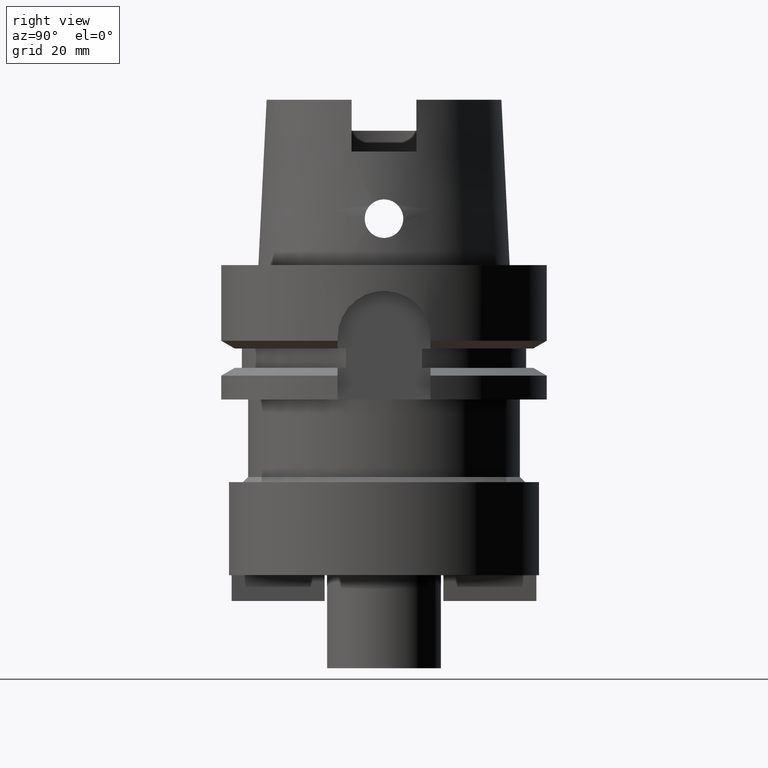
[diagram: clean part render]
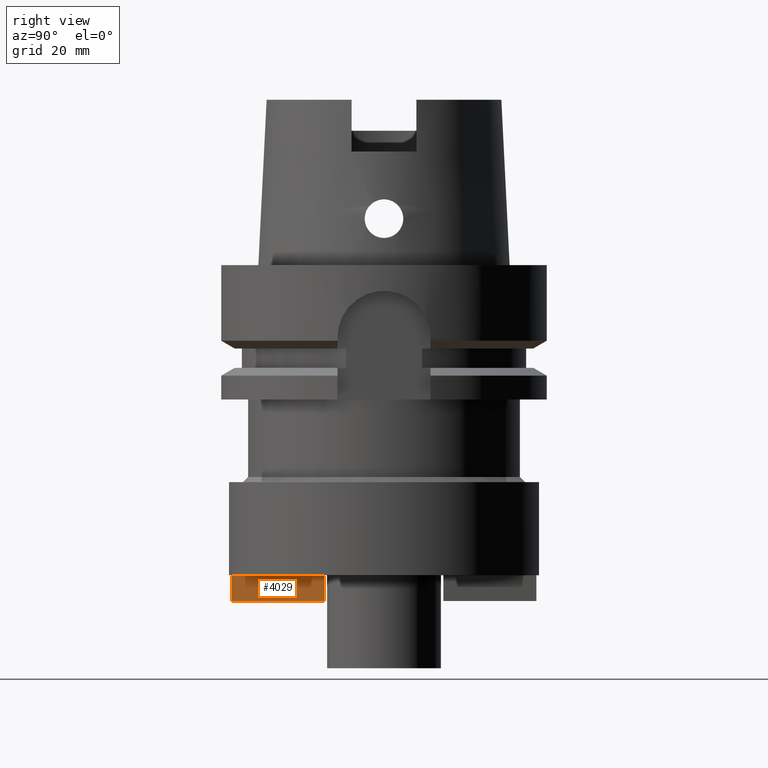
[diagram: same view with one face highlighted and labeled with its STEP entity id]
A machine part, right view. The second image highlights one B-rep face of the part: STEP entity #4029.
In plain terms, the highlighted planar face has unit normal (-1, 0, 0).
Its self-contained STEP definition (entity closure, byte-faithful):
#1441=DIRECTION('',(0.E0,-1.E0,0.E0));
#1442=VECTOR('',#1441,1.8E1);
#1443=CARTESIAN_POINT('',(5.E0,-1.15E1,-6.E1));
#1444=LINE('',#1443,#1442);
#2096=DIRECTION('',(0.E0,0.E0,1.E0));
#2097=VECTOR('',#2096,5.E0);
#2098=CARTESIAN_POINT('',(5.E0,-1.15E1,-6.5E1));
#2099=LINE('',#2098,#2097);
#2138=DIRECTION('',(0.E0,0.E0,-1.E0));
#2139=VECTOR('',#2138,5.E0);
#2140=CARTESIAN_POINT('',(5.E0,-2.95E1,-6.E1));
#2141=LINE('',#2140,#2139);
#2145=DIRECTION('',(0.E0,1.E0,0.E0));
#2146=VECTOR('',#2145,1.8E1);
#2147=CARTESIAN_POINT('',(5.E0,-2.95E1,-6.5E1));
#2148=LINE('',#2147,#2146);
#2295=CARTESIAN_POINT('',(5.E0,-1.15E1,-6.E1));
#2296=CARTESIAN_POINT('',(5.E0,-2.95E1,-6.E1));
#2297=VERTEX_POINT('',#2295);
#2298=VERTEX_POINT('',#2296);
#2481=CARTESIAN_POINT('',(5.E0,-1.15E1,-6.5E1));
#2482=VERTEX_POINT('',#2481);
#2483=CARTESIAN_POINT('',(5.E0,-2.95E1,-6.5E1));
#2484=VERTEX_POINT('',#2483);
#4015=CARTESIAN_POINT('',(5.E0,0.E0,0.E0));
#4016=DIRECTION('',(-1.E0,0.E0,0.E0));
#4017=DIRECTION('',(0.E0,0.E0,1.E0));
#4018=AXIS2_PLACEMENT_3D('',#4015,#4016,#4017);
#4019=PLANE('',#4018);
#4020=ORIENTED_EDGE('',*,*,#3472,.F.);
#4022=ORIENTED_EDGE('',*,*,#4021,.F.);
#4024=ORIENTED_EDGE('',*,*,#4023,.F.);
#4026=ORIENTED_EDGE('',*,*,#4025,.F.);
#4027=EDGE_LOOP('',(#4020,#4022,#4024,#4026));
#4028=FACE_OUTER_BOUND('',#4027,.F.);
#3472=EDGE_CURVE('',#2297,#2298,#1444,.T.);
#4021=EDGE_CURVE('',#2482,#2297,#2099,.T.);
#4023=EDGE_CURVE('',#2484,#2482,#2148,.T.);
#4025=EDGE_CURVE('',#2298,#2484,#2141,.T.);
#4029=ADVANCED_FACE('',(#4028),#4019,.F.);